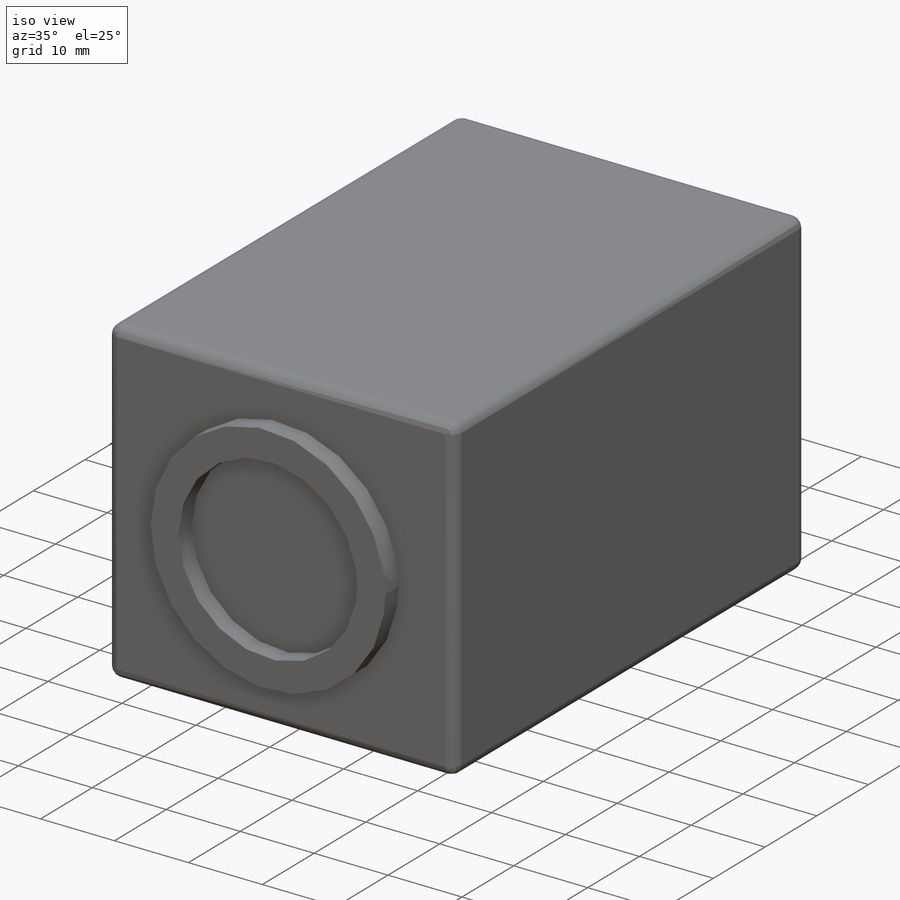
[diagram: iso view]
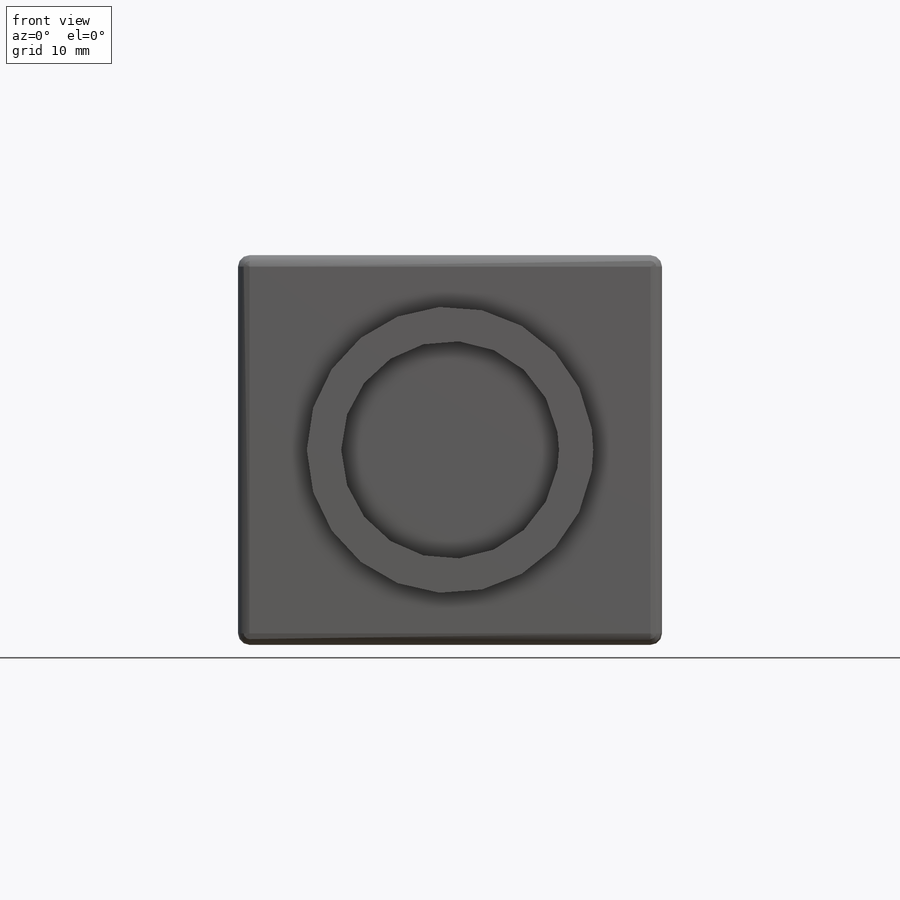
[diagram: front view]
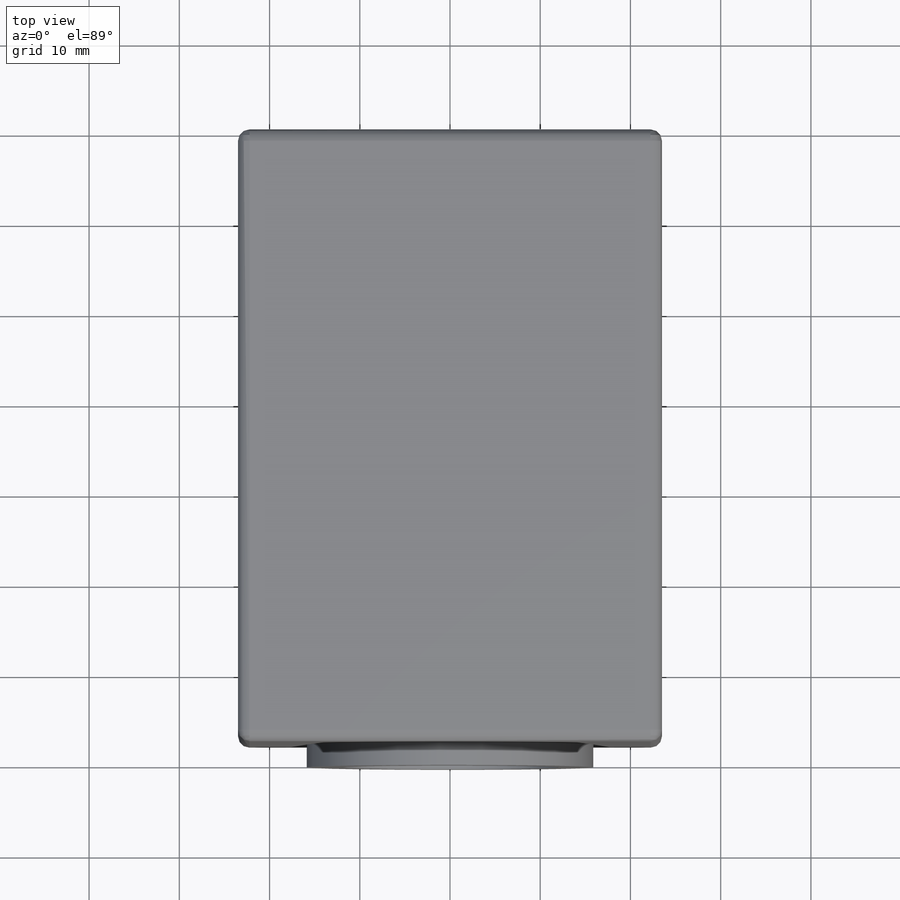
[diagram: top view]
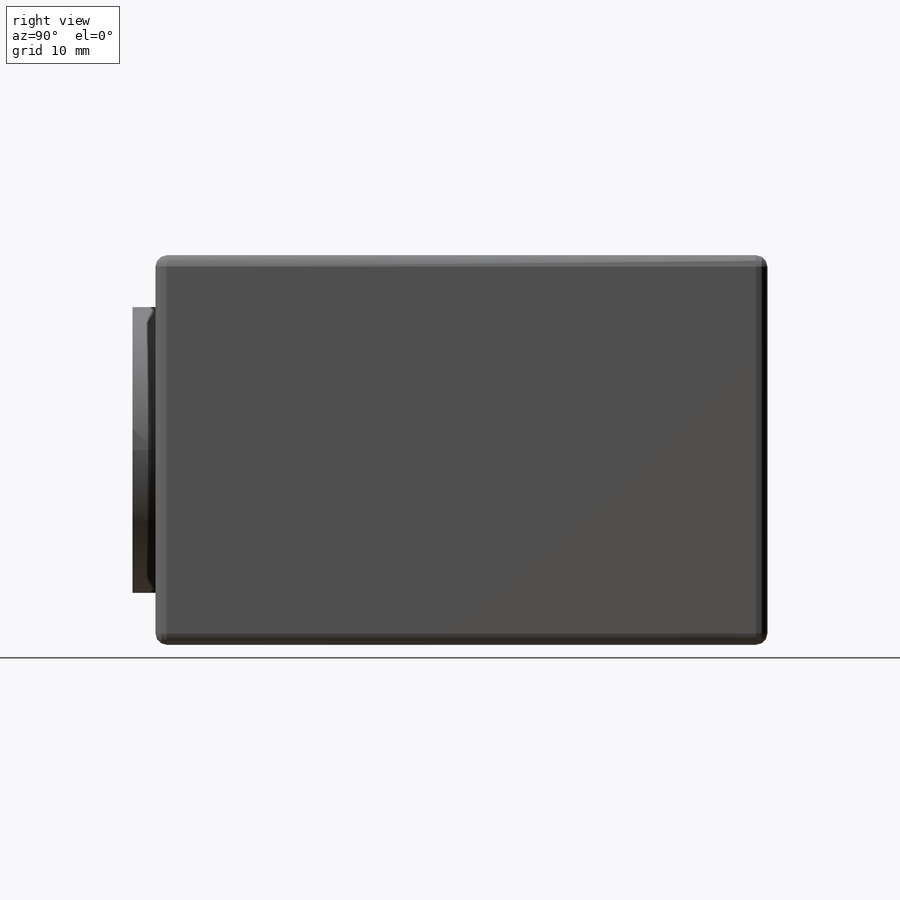
[diagram: right view]
SOLIDWORKS PART (.sldprt)
format: sldprt  version: not decoded by parser v0  size: 276,480 bytes
history: native  units: mm
features: sketch x3, extrude x2, material x1, fillet x1, cut_extrude x1 (+11 scaffold rows collapsed)
feature tree (19):
  scaffold x11  (default folders/planes/origin — collapsed)
  material  "1060 Alloy"
  sketch  "Sketch1"  dims[D1=46.99mm D2=43.18mm D3=23.495mm D4=21.59mm]
  extrude  "Extrude1"  Depth=67.818mm
  fillet  "Fillet2"  Radius=1.27mm
  sketch  "Sketch2"  dims[D1=~12.667219mm]
  extrude  "Extrude2"  Depth=2.54mm
  sketch  "Sketch3"  dims[D1=28.6385mm D2=21.717mm D3=11.43mm D4=11.303mm]
  cut_extrude  "Cut-Extrude1"  Depth=2.54mm
decode coverage: 7 of 7 modeling features carry decoded parameters
note: ~ marks probable driven/reference dimensions
note: suppression state not decoded; provenance and decode notes live in map.json
